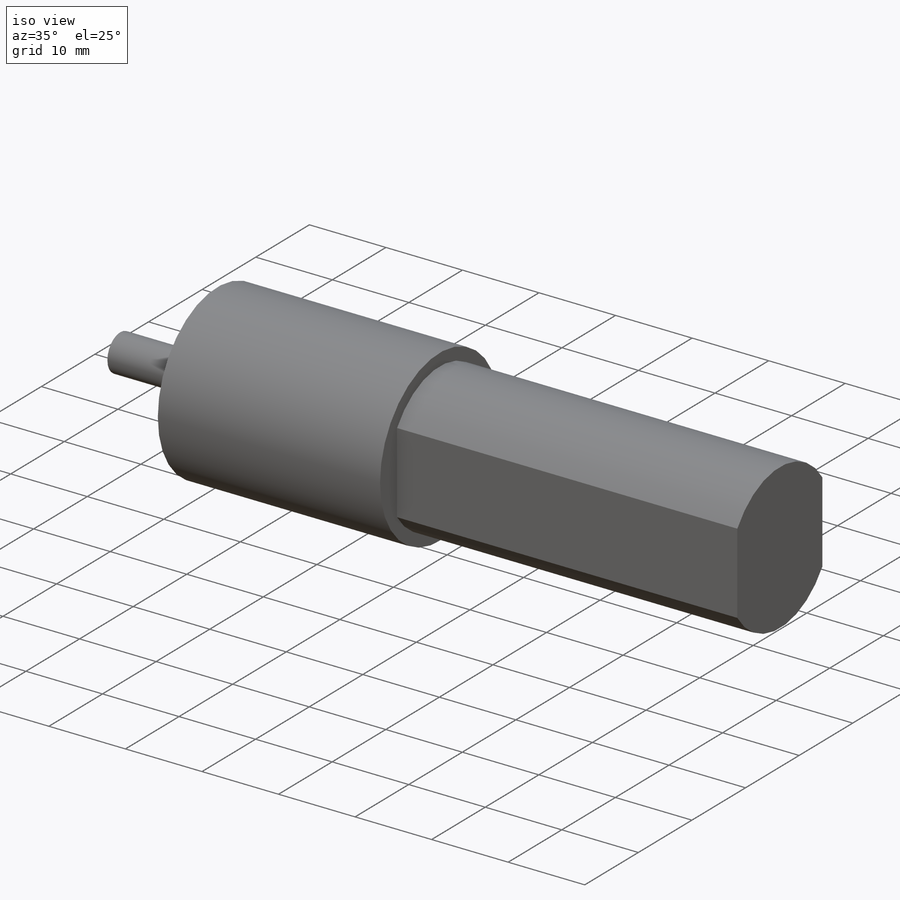
[diagram: iso view]
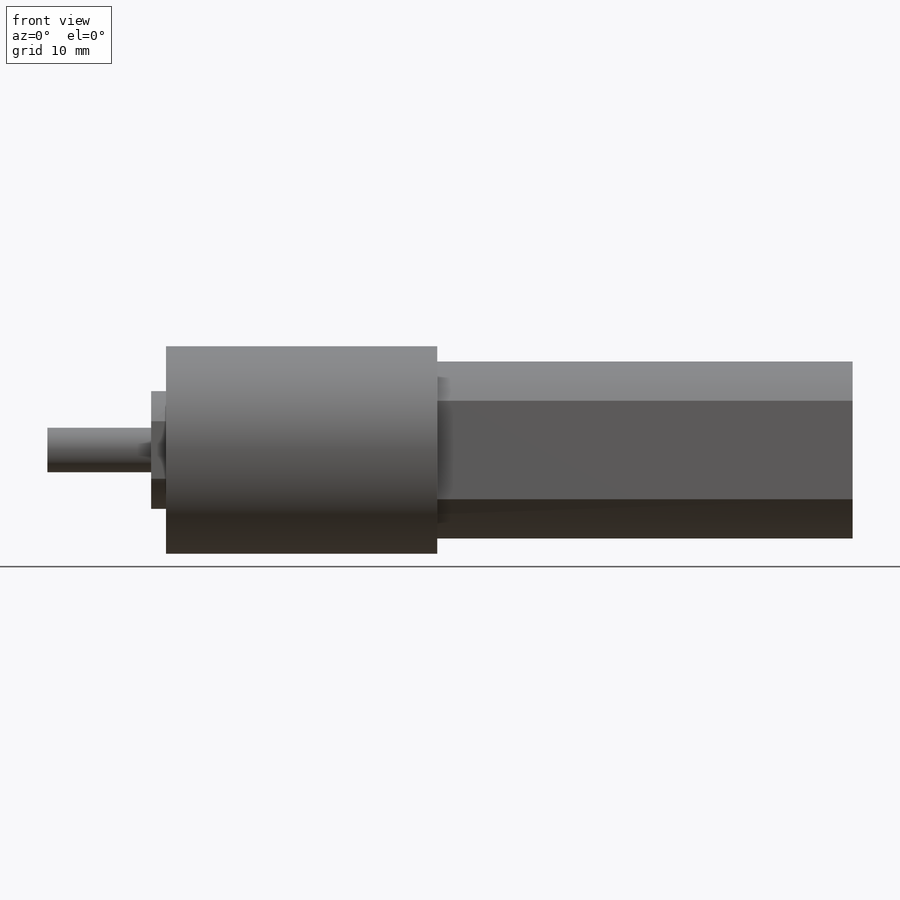
[diagram: front view]
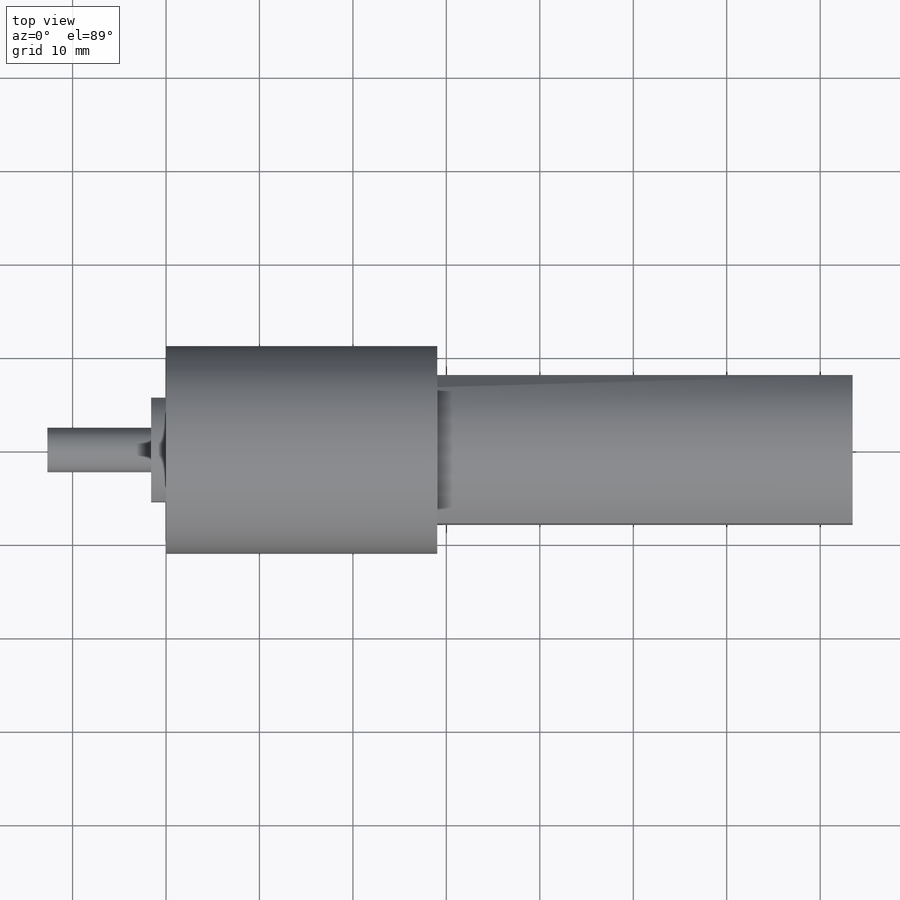
[diagram: top view]
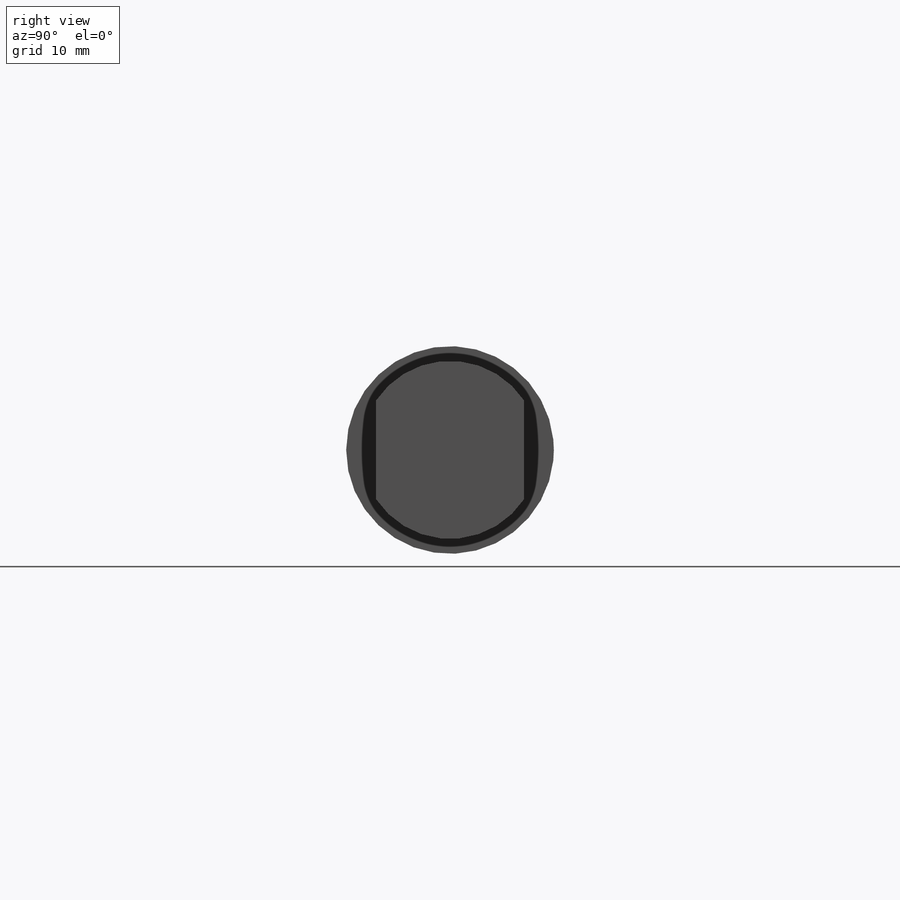
[diagram: right view]
SOLIDWORKS PART (.sldprt)
format: sldprt  version: not decoded by parser v0  size: 203,776 bytes
history: native  units: mm
features: sketch x6, extrude x4, cut_extrude x2, material x1 (+11 scaffold rows collapsed)
feature tree (24):
  scaffold x11  (default folders/planes/origin — collapsed)
  material  "Material <not specified>"
  sketch  "Sketch1"  dims[D1=22.225mm]
  extrude  "Boss-Extrude1"  Depth=29.028571mm
  sketch  "Sketch2"  dims[D1=19.05mm]
  extrude  "Boss-Extrude2"  Depth=44.45mm
  sketch  "Sketch3"  dims[D1=15.875mm D2=~12.167253mm D3=7.9375mm]
  cut_extrude  "Cut-Extrude1"  Depth=44.45mm
  sketch  "Sketch4"  dims[D1=12.7mm]
  extrude  "Boss-Extrude3"  Depth=1.5875mm
  sketch  "Sketch5"  dims[D1=11.1125mm]
  cut_extrude  "Cut-Extrude2"  Depth=1.5875mm
  sketch  "Sketch6"  dims[D1=4.7625mm]
  extrude  "Boss-Extrude4"  Depth=11.1125mm
decode coverage: 12 of 12 modeling features carry decoded parameters
note: ~ marks probable driven/reference dimensions
note: suppression state not decoded; provenance and decode notes live in map.json
